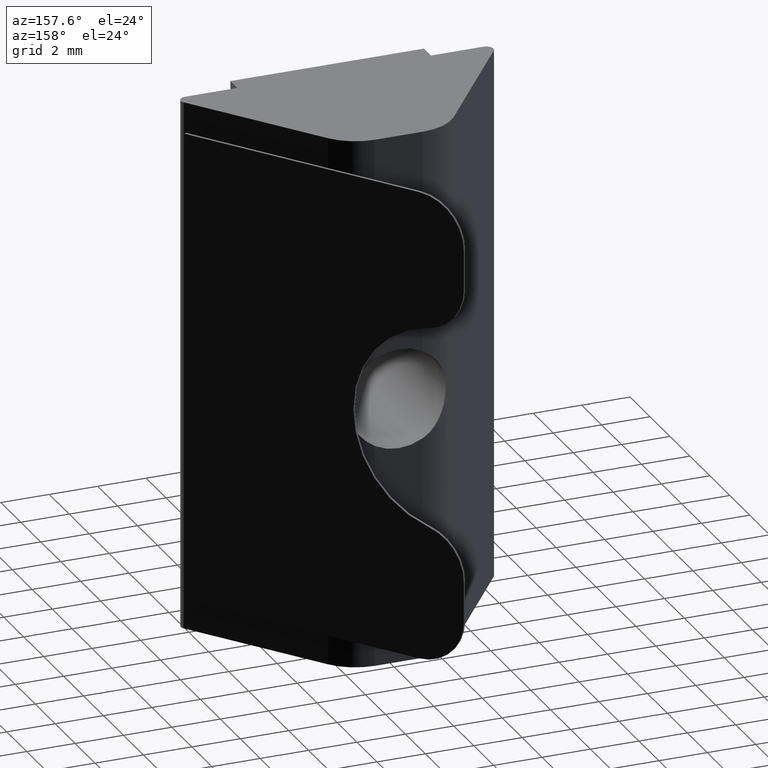
[diagram: clean part render]
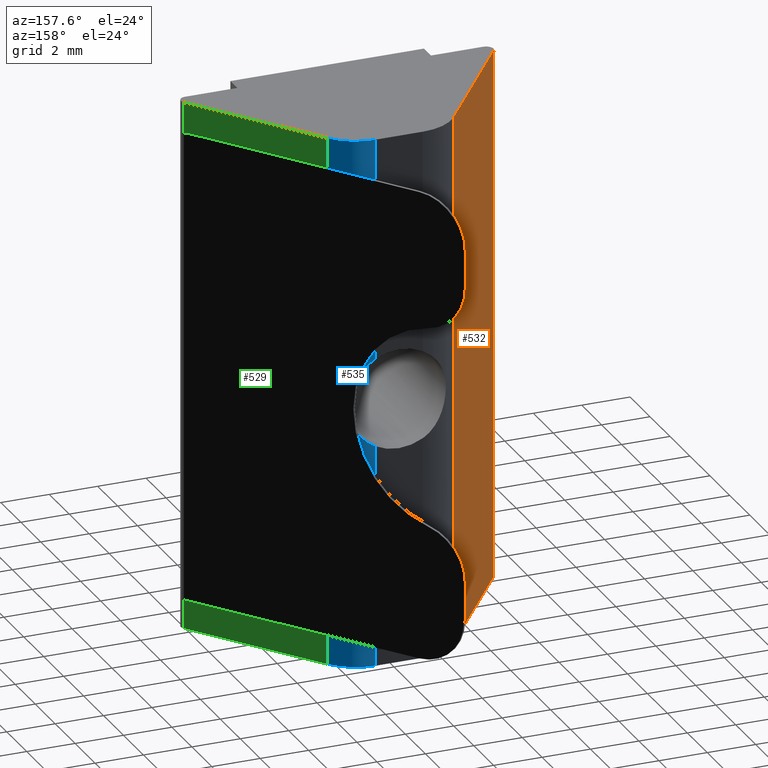
[diagram: same view with three faces highlighted in distinct colors, each labeled with its STEP entity id]
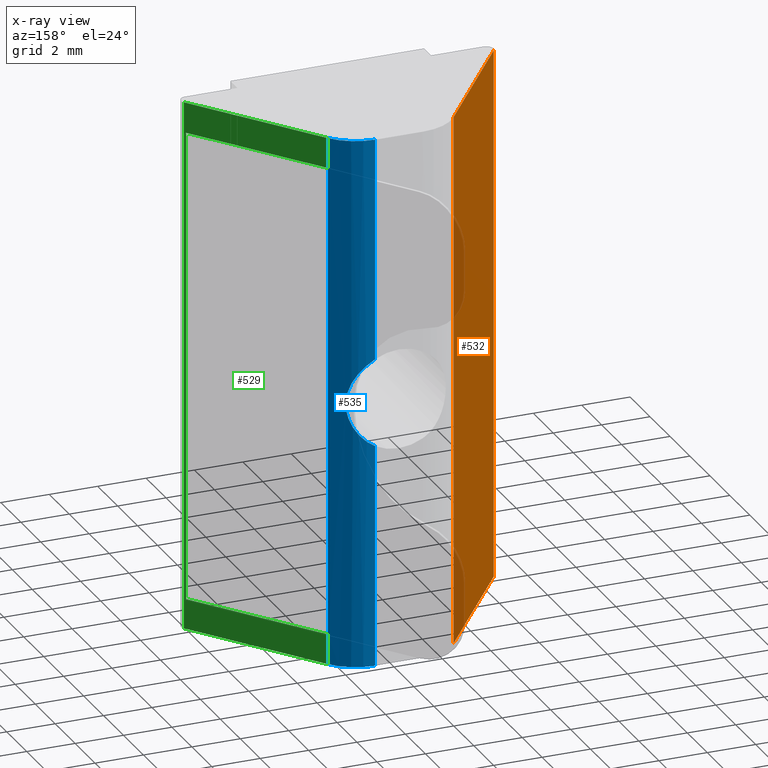
[diagram: x-ray of the same camera — body ghosted, the three highlighted faces saturated]
A machine part, auxiliary view with three faces highlighted in distinct colors.
The next image is the same camera in x-ray (body ghosted, the three faces saturated) — at least one of them is partly hidden behind the body in this view.
Their STEP definitions:

[orange] entity #532 — the highlighted planar face has unit normal (-0.8074, 0.59, 0).
#28=PLANE('',#578);
#53=FACE_OUTER_BOUND('',#81,.T.);
#81=EDGE_LOOP('',(#442,#443,#444,#445));
#129=LINE('',#847,#183);
#131=LINE('',#857,#185);
#133=LINE('',#861,#187);
#134=LINE('',#862,#188);
#183=VECTOR('',#687,6.44424747615688);
#185=VECTOR('',#697,22.);
#187=VECTOR('',#701,6.44424747615688);
#188=VECTOR('',#702,22.);
#257=VERTEX_POINT('',#844);
#258=VERTEX_POINT('',#846);
#262=VERTEX_POINT('',#855);
#263=VERTEX_POINT('',#860);
#322=EDGE_CURVE('',#258,#257,#129,.T.);
#327=EDGE_CURVE('',#262,#257,#131,.T.);
#329=EDGE_CURVE('',#263,#262,#133,.T.);
#330=EDGE_CURVE('',#258,#263,#134,.T.);
#442=ORIENTED_EDGE('',*,*,#327,.F.);
#443=ORIENTED_EDGE('',*,*,#329,.F.);
#444=ORIENTED_EDGE('',*,*,#330,.F.);
#445=ORIENTED_EDGE('',*,*,#322,.T.);
#532=ADVANCED_FACE('',(#53),#28,.T.);
#578=AXIS2_PLACEMENT_3D('',#859,#699,#700);
#687=DIRECTION('',(-0.59001658934231,-0.807391122257898,0.));
#697=DIRECTION('',(0.,0.,-1.));
#699=DIRECTION('center_axis',(-0.807391122257898,0.59001658934231,0.));
#700=DIRECTION('ref_axis',(-0.59001658934231,-0.807391122257898,0.));
#701=DIRECTION('',(-0.59001658934231,-0.807391122257898,0.));
#702=DIRECTION('',(0.,0.,1.));
#844=CARTESIAN_POINT('',(-6.4014194400288,0.477004976802693,0.));
#846=CARTESIAN_POINT('',(-2.59920652326893,5.68003317868462,0.));
#847=CARTESIAN_POINT('',(-2.,6.5,0.));
#855=CARTESIAN_POINT('',(-6.4014194400288,0.477004976802693,22.));
#857=CARTESIAN_POINT('',(-6.4014194400288,0.477004976802692,0.));
#859=CARTESIAN_POINT('Origin',(-2.,6.5,0.));
#860=CARTESIAN_POINT('',(-2.59920652326893,5.68003317868462,22.));
#861=CARTESIAN_POINT('',(-2.,6.5,22.));
#862=CARTESIAN_POINT('',(-2.59920652326893,5.68003317868462,0.));

[blue] entity #535 — the highlighted cylindrical surface (partial cylindrical patch) has radius 2 mm, axis along (0, 0, 1).
#18=B_SPLINE_CURVE_WITH_KNOTS('',3,(#906,#907,#908,#909,#910,#911,#912,
#913,#914,#915,#916,#917,#918,#919,#920,#921,#922,#923),.UNSPECIFIED.,.F.,
 .F.,(4,2,2,2,2,2,2,2,4),(0.823409675157867,0.827322454478377,0.895000732057408,
0.966454240958267,1.03790774985913,1.10936125875998,1.18081476766084,1.24849304523987,
1.25240582456038),.UNSPECIFIED.);
#56=FACE_OUTER_BOUND('',#84,.T.);
#84=EDGE_LOOP('',(#464,#465,#466,#467,#468,#469,#470,#471));
#101=LINE('',#769,#155);
#120=LINE('',#828,#174);
#123=LINE('',#832,#177);
#143=LINE('',#904,#197);
#144=LINE('',#924,#198);
#155=VECTOR('',#613,19.5);
#174=VECTOR('',#674,1.25);
#177=VECTOR('',#677,1.25);
#197=VECTOR('',#721,9.18247480364057);
#198=VECTOR('',#722,9.18247480364057);
#217=CIRCLE('',#575,2.);
#219=CIRCLE('',#580,2.);
#230=VERTEX_POINT('',#766);
#231=VERTEX_POINT('',#768);
#250=VERTEX_POINT('',#827);
#251=VERTEX_POINT('',#830);
#260=VERTEX_POINT('',#850);
#264=VERTEX_POINT('',#864);
#272=VERTEX_POINT('',#903);
#273=VERTEX_POINT('',#905);
#283=EDGE_CURVE('',#231,#230,#101,.T.);
#312=EDGE_CURVE('',#250,#231,#120,.T.);
#315=EDGE_CURVE('',#230,#251,#123,.T.);
#325=EDGE_CURVE('',#251,#260,#217,.T.);
#331=EDGE_CURVE('',#264,#250,#219,.T.);
#342=EDGE_CURVE('',#260,#272,#143,.T.);
#343=EDGE_CURVE('',#272,#273,#18,.T.);
#344=EDGE_CURVE('',#273,#264,#144,.T.);
#464=ORIENTED_EDGE('',*,*,#331,.T.);
#465=ORIENTED_EDGE('',*,*,#312,.T.);
#466=ORIENTED_EDGE('',*,*,#283,.T.);
#467=ORIENTED_EDGE('',*,*,#315,.T.);
#468=ORIENTED_EDGE('',*,*,#325,.T.);
#469=ORIENTED_EDGE('',*,*,#342,.T.);
#470=ORIENTED_EDGE('',*,*,#343,.T.);
#471=ORIENTED_EDGE('',*,*,#344,.T.);
#514=CYLINDRICAL_SURFACE('',#583,2.);
#535=ADVANCED_FACE('',(#56),#514,.T.);
#575=AXIS2_PLACEMENT_3D('',#852,#691,#692);
#580=AXIS2_PLACEMENT_3D('',#865,#705,#706);
#583=AXIS2_PLACEMENT_3D('',#902,#719,#720);
#613=DIRECTION('',(0.,0.,-1.));
#674=DIRECTION('',(0.,0.,-1.));
#677=DIRECTION('',(0.,0.,-1.));
#691=DIRECTION('center_axis',(0.,0.,1.));
#692=DIRECTION('ref_axis',(0.452760096882273,0.891632376414829,0.));
#705=DIRECTION('center_axis',(0.,0.,-1.));
#706=DIRECTION('ref_axis',(0.452760096882273,0.891632376414829,0.));
#719=DIRECTION('center_axis',(0.,0.,1.));
#720=DIRECTION('ref_axis',(0.452760096882273,0.891632376414829,0.));
#721=DIRECTION('',(0.,0.,1.));
#722=DIRECTION('',(0.,0.,1.));
#766=CARTESIAN_POINT('',(2.59920652326893,5.68003317868462,1.25));
#768=CARTESIAN_POINT('',(2.59920652326893,5.68003317868462,20.75));
#769=CARTESIAN_POINT('',(2.59920652326893,5.68003317868462,0.));
#827=CARTESIAN_POINT('',(2.59920652326893,5.68003317868462,22.));
#828=CARTESIAN_POINT('',(2.59920652326893,5.68003317868462,0.));
#830=CARTESIAN_POINT('',(2.59920652326893,5.68003317868462,0.));
#832=CARTESIAN_POINT('',(2.59920652326893,5.68003317868462,0.));
#850=CARTESIAN_POINT('',(0.984424278753135,6.5,0.));
#852=CARTESIAN_POINT('Origin',(0.984424278753135,4.5,0.));
#864=CARTESIAN_POINT('',(0.984424278753135,6.5,22.));
#865=CARTESIAN_POINT('Origin',(0.984424278753135,4.5,22.));
#902=CARTESIAN_POINT('Origin',(0.984424278753135,4.5,0.));
#903=CARTESIAN_POINT('',(0.984424278753135,6.5,9.18247480364057));
#904=CARTESIAN_POINT('',(0.984424278753135,6.5,0.));
#905=CARTESIAN_POINT('',(0.984424278753135,6.5,12.8175251963594));
#906=CARTESIAN_POINT('Ctrl Pts',(0.984424278753135,6.5,9.18247480364057));
#907=CARTESIAN_POINT('Ctrl Pts',(0.996020297091588,6.5,9.18875554297344));
#908=CARTESIAN_POINT('Ctrl Pts',(1.00749567100125,6.49989912242261,9.19511453434627));
#909=CARTESIAN_POINT('Ctrl Pts',(1.21510578086432,6.49632580636784,9.31272755613783));
#910=CARTESIAN_POINT('Ctrl Pts',(1.42167327662954,6.45744658489841,9.4833261022285));
#911=CARTESIAN_POINT('Ctrl Pts',(1.71856597584826,6.36719911563973,9.82799284560304));
#912=CARTESIAN_POINT('Ctrl Pts',(1.84922147788704,6.30608427881599,10.0435023262015));
#913=CARTESIAN_POINT('Ctrl Pts',(2.02348529532173,6.21177357712414,10.5100889318573));
#914=CARTESIAN_POINT('Ctrl Pts',(2.067,6.18167470331418,10.7618216369971));
#915=CARTESIAN_POINT('Ctrl Pts',(2.067,6.18167470331418,11.2381783630029));
#916=CARTESIAN_POINT('Ctrl Pts',(2.02348529532173,6.21177357712414,11.4899110681427));
#917=CARTESIAN_POINT('Ctrl Pts',(1.84922147788704,6.30608427881599,11.9564976737985));
#918=CARTESIAN_POINT('Ctrl Pts',(1.71856597584826,6.36719911563973,12.172007154397));
#919=CARTESIAN_POINT('Ctrl Pts',(1.42167327662954,6.45744658489841,12.5166738977715));
#920=CARTESIAN_POINT('Ctrl Pts',(1.21510578086432,6.49632580636784,12.6872724438622));
#921=CARTESIAN_POINT('Ctrl Pts',(1.00749567100125,6.49989912242261,12.8048854656537));
#922=CARTESIAN_POINT('Ctrl Pts',(0.996020297091588,6.5,12.8112444570266));
#923=CARTESIAN_POINT('Ctrl Pts',(0.984424278753135,6.5,12.8175251963594));
#924=CARTESIAN_POINT('',(0.984424278753135,6.5,0.));

[green] entity #529 — the highlighted planar face has unit normal (0.8074, 0.59, 0).
#26=PLANE('',#571);
#50=FACE_OUTER_BOUND('',#78,.T.);
#78=EDGE_LOOP('',(#418,#419,#420,#421,#422,#423,#424,#425));
#110=LINE('',#803,#164);
#115=LINE('',#812,#169);
#116=LINE('',#814,#170);
#119=LINE('',#825,#173);
#120=LINE('',#828,#174);
#121=LINE('',#829,#175);
#122=LINE('',#831,#176);
#123=LINE('',#832,#177);
#164=VECTOR('',#650,6.35243339474486);
#169=VECTOR('',#657,6.35243339474485);
#170=VECTOR('',#660,19.5);
#173=VECTOR('',#671,22.);
#174=VECTOR('',#674,1.25);
#175=VECTOR('',#675,6.44424747615688);
#176=VECTOR('',#676,6.44424747615688);
#177=VECTOR('',#677,1.25);
#230=VERTEX_POINT('',#766);
#231=VERTEX_POINT('',#768);
#242=VERTEX_POINT('',#802);
#245=VERTEX_POINT('',#810);
#246=VERTEX_POINT('',#818);
#249=VERTEX_POINT('',#823);
#250=VERTEX_POINT('',#827);
#251=VERTEX_POINT('',#830);
#300=EDGE_CURVE('',#242,#231,#110,.T.);
#305=EDGE_CURVE('',#230,#245,#115,.T.);
#306=EDGE_CURVE('',#245,#242,#116,.T.);
#311=EDGE_CURVE('',#249,#246,#119,.T.);
#312=EDGE_CURVE('',#250,#231,#120,.T.);
#313=EDGE_CURVE('',#246,#250,#121,.T.);
#314=EDGE_CURVE('',#249,#251,#122,.T.);
#315=EDGE_CURVE('',#230,#251,#123,.T.);
#418=ORIENTED_EDGE('',*,*,#300,.T.);
#419=ORIENTED_EDGE('',*,*,#312,.F.);
#420=ORIENTED_EDGE('',*,*,#313,.F.);
#421=ORIENTED_EDGE('',*,*,#311,.F.);
#422=ORIENTED_EDGE('',*,*,#314,.T.);
#423=ORIENTED_EDGE('',*,*,#315,.F.);
#424=ORIENTED_EDGE('',*,*,#305,.T.);
#425=ORIENTED_EDGE('',*,*,#306,.T.);
#529=ADVANCED_FACE('',(#50),#26,.T.);
#571=AXIS2_PLACEMENT_3D('',#826,#672,#673);
#650=DIRECTION('',(-0.59001658934231,0.807391122257898,2.66453525910038E-16));
#657=DIRECTION('',(0.59001658934231,-0.807391122257898,0.));
#660=DIRECTION('',(6.71846156306296E-17,-9.19368424419141E-17,1.));
#671=DIRECTION('',(0.,0.,1.));
#672=DIRECTION('center_axis',(0.807391122257898,0.59001658934231,0.));
#673=DIRECTION('ref_axis',(-0.59001658934231,0.807391122257898,0.));
#674=DIRECTION('',(0.,0.,-1.));
#675=DIRECTION('',(-0.59001658934231,0.807391122257898,0.));
#676=DIRECTION('',(-0.59001658934231,0.807391122257898,0.));
#677=DIRECTION('',(0.,0.,-1.));
#766=CARTESIAN_POINT('',(2.59920652326893,5.68003317868462,1.25));
#768=CARTESIAN_POINT('',(2.59920652326893,5.68003317868462,20.75));
#802=CARTESIAN_POINT('',(6.34724760886048,0.551134851033024,20.75));
#803=CARTESIAN_POINT('',(2.86102012104081,5.32176193962837,20.75));
#810=CARTESIAN_POINT('',(6.34724760886048,0.551134851033026,1.25));
#812=CARTESIAN_POINT('',(6.54862380443024,0.275567425516512,1.25));
#814=CARTESIAN_POINT('',(6.34724760886048,0.551134851033025,10.375));
#818=CARTESIAN_POINT('',(6.4014194400288,0.477004976802693,22.));
#823=CARTESIAN_POINT('',(6.4014194400288,0.477004976802693,0.));
#825=CARTESIAN_POINT('',(6.4014194400288,0.477004976802693,0.));
#826=CARTESIAN_POINT('Origin',(6.75,0.,0.));
#827=CARTESIAN_POINT('',(2.59920652326893,5.68003317868462,22.));
#828=CARTESIAN_POINT('',(2.59920652326893,5.68003317868462,0.));
#829=CARTESIAN_POINT('',(6.75,0.,22.));
#830=CARTESIAN_POINT('',(2.59920652326893,5.68003317868462,0.));
#831=CARTESIAN_POINT('',(6.75,0.,0.));
#832=CARTESIAN_POINT('',(2.59920652326893,5.68003317868462,0.));